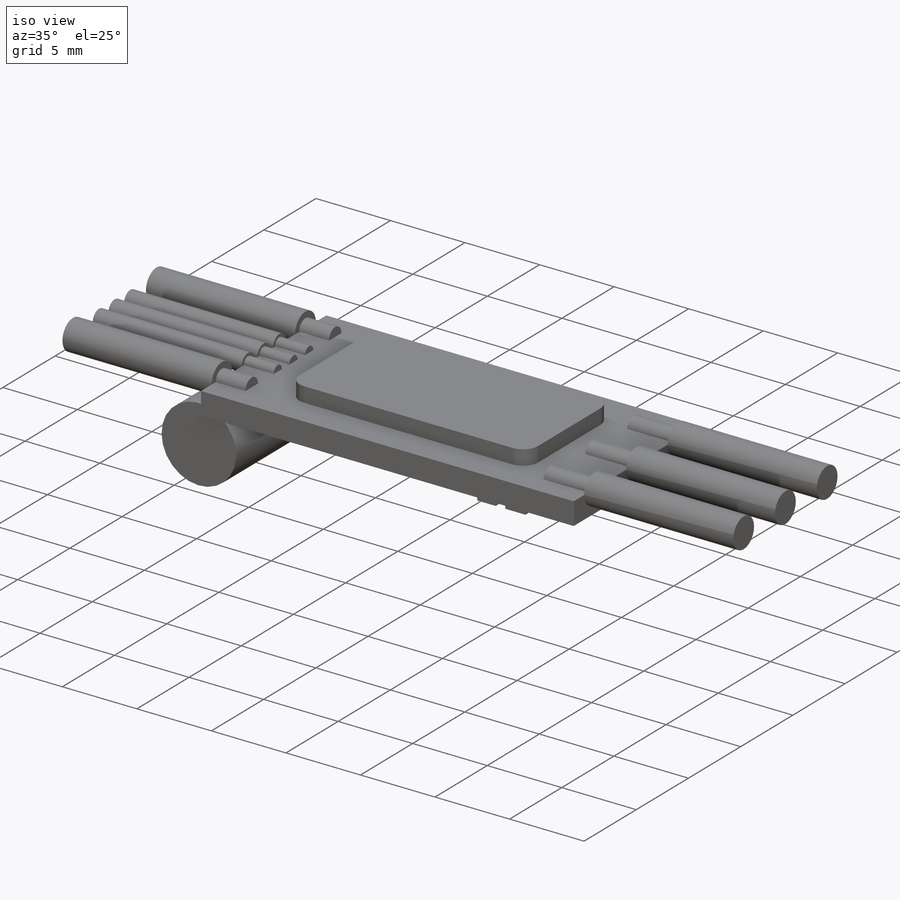
[diagram: iso view]
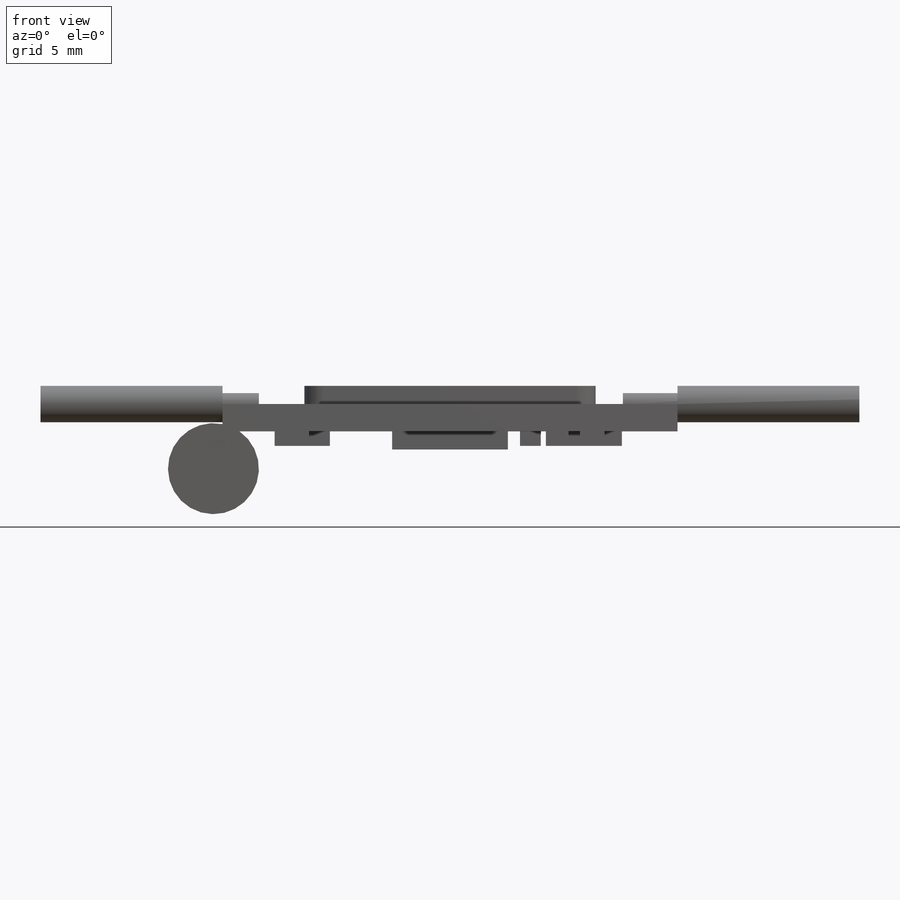
[diagram: front view]
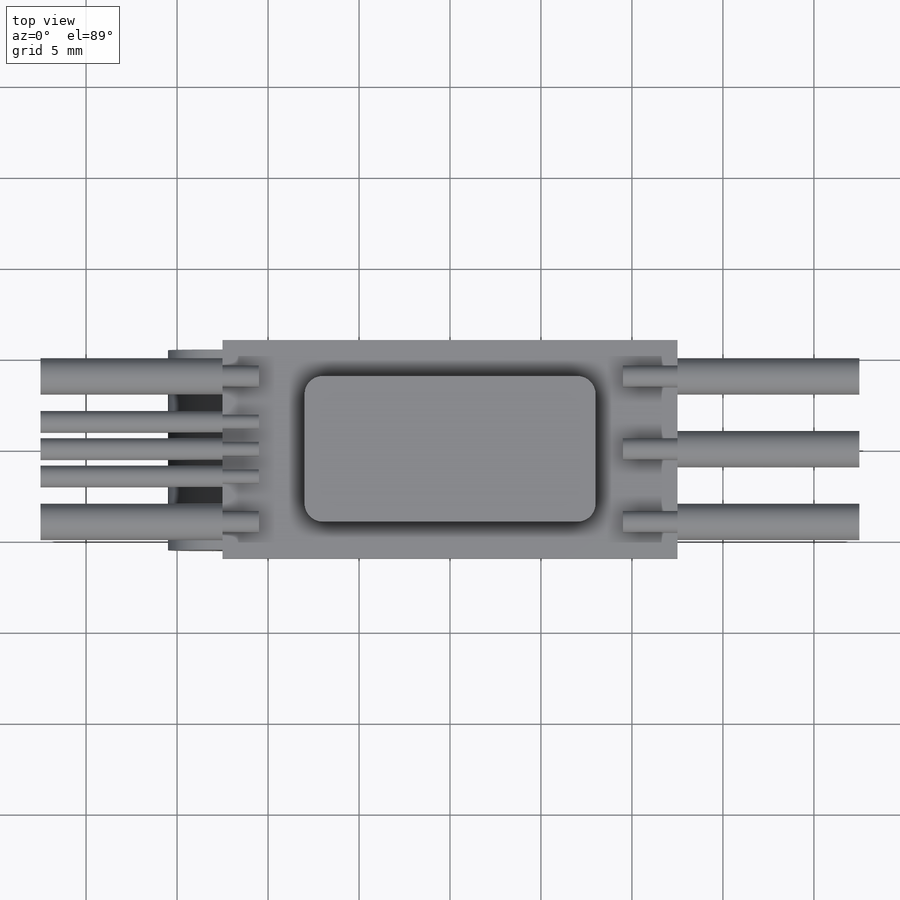
[diagram: top view]
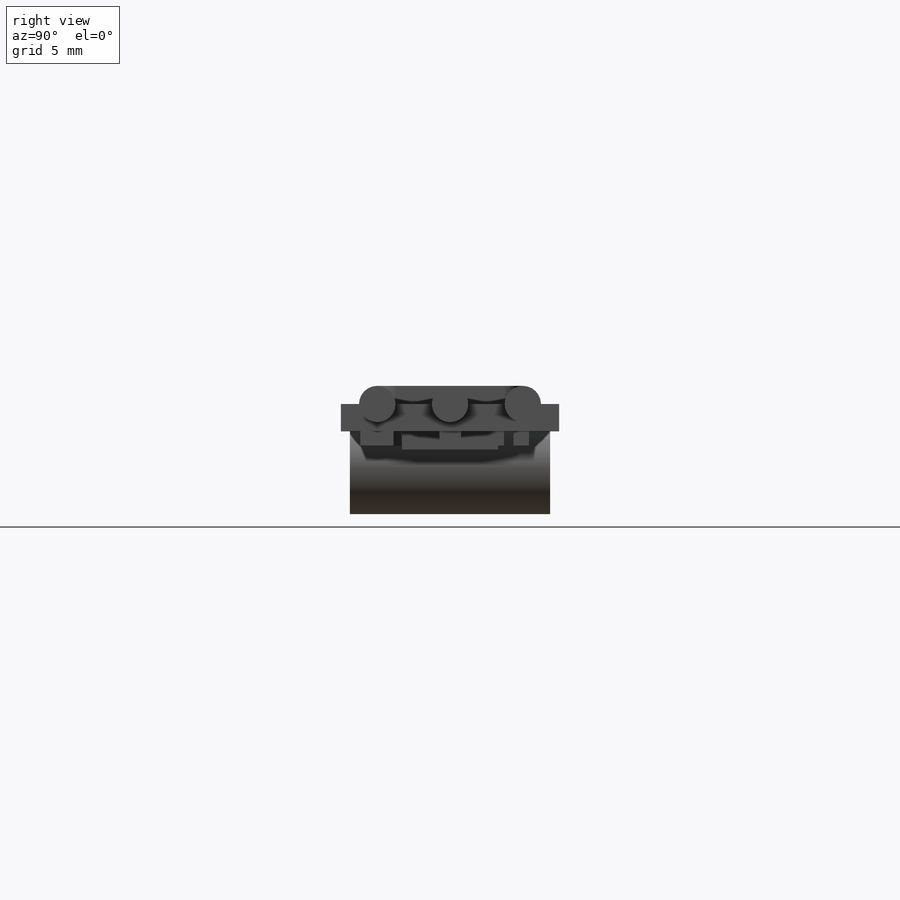
[diagram: right view]
SOLIDWORKS PART (.sldprt)
format: sldprt  version: not decoded by parser v0  size: 752,640 bytes
history: native  units: mm
features: sketch x9, extrude x9, material x1, plane x1 (+13 scaffold rows collapsed)
feature tree (33):
  scaffold x13  (default folders/planes/origin — collapsed)
  material  "Material <not specified>"
  sketch  "Sketch1"  dims[D1=25.0mm D2=12.0mm]
  extrude  "Boss-Extrude1"  Depth=1.5mm
  sketch  "Sketch2"  dims[c1.D1=2.0mm c1.D3=2.0mm c1.D2=4.0mm c2.D3=4.0mm]
  extrude  "Boss-Extrude2"  Depth=10mm
  sketch  "Sketch3"  dims[D1=1.2mm]
  extrude  "Boss-Extrude3"  Depth=3mm
  sketch  "Sketch4"  dims[c1.D1=1.2mm c1.D2=1.2mm c1.D3=1.2mm c2.D2=1.5mm c2.D3=1.5mm]
  extrude  "Boss-Extrude4"  Depth=10mm
  sketch  "Sketch5"  dims[D1=1.2mm D2=0.8mm]
  extrude  "Boss-Extrude5"  Depth=2mm
  sketch  "Sketch6"  dims[D3=1.0mm D1=8.0mm D2=16.0mm]
  extrude  "Boss-Extrude6"  Depth=1mm
  plane  "Plane1"  Offset=0.5mm
  sketch  "Sketch8"  dims[D1=5.0mm D2=2.05mm D3=13.0mm]
  extrude  "Boss-Extrude10"  Depth=11mm
  sketch  "Sketch9"
  extrude  "Boss-Extrude11"  Depth=1mm
  sketch  "Sketch10"
  extrude  "Boss-Extrude12"  Depth=0.8mm
decode coverage: 16 of 18 modeling features carry decoded parameters
note: suppression state not decoded; provenance and decode notes live in map.json
